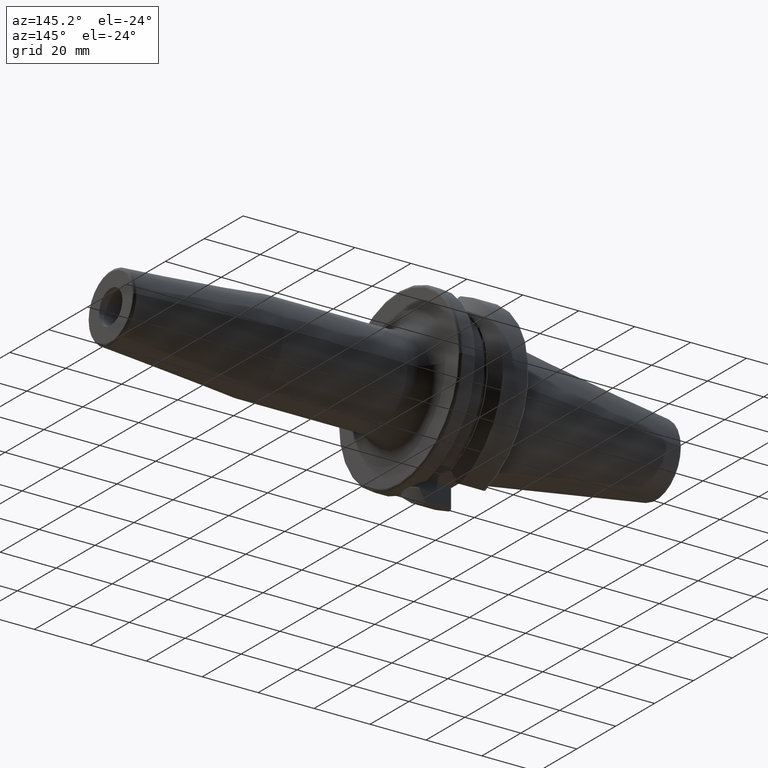
[diagram: clean part render]
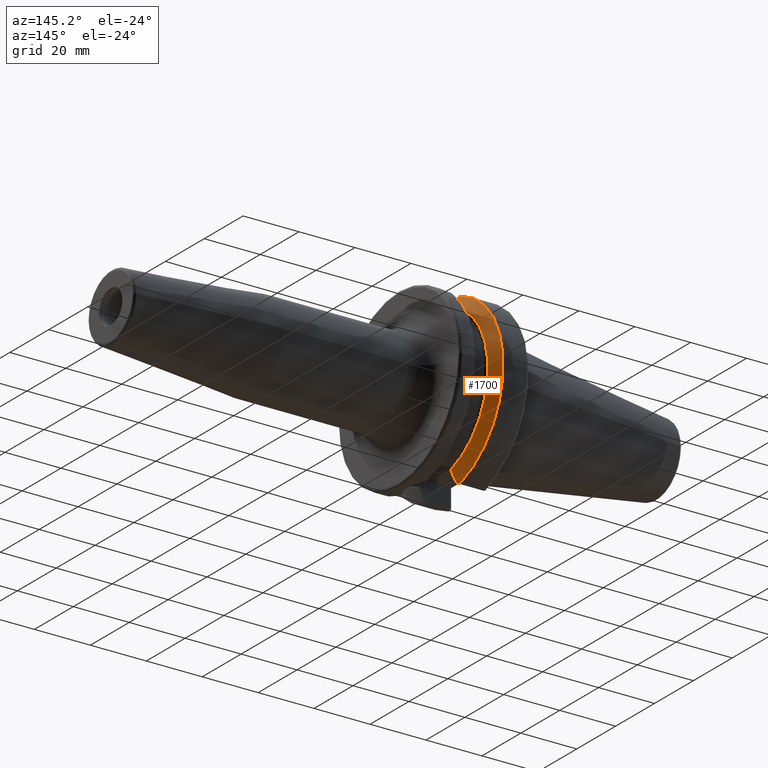
[diagram: same view with one face highlighted and labeled with its STEP entity id]
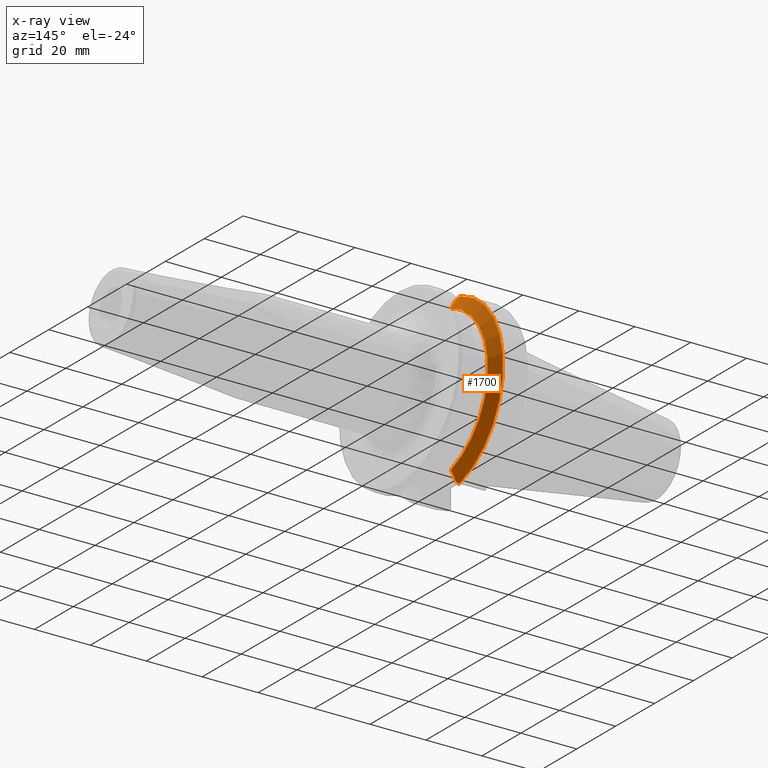
[diagram: x-ray of the same camera — body ghosted, the highlighted face saturated]
A machine part, auxiliary view. The second image highlights one B-rep face of the part: STEP entity #1700.
The next image is the same camera in x-ray: the body ghosted, the highlighted face saturated — about 0% of this face is hidden behind the body in this view.
In plain terms, the highlighted conical surface has half-angle 60 deg.
Its self-contained STEP definition (entity closure, byte-faithful):
#155=CARTESIAN_POINT('',(1.212089730171E1,8.095E0,-2.944558475789E1));
#156=CARTESIAN_POINT('',(1.234623272522E1,8.095E0,-2.904081227564E1));
#157=CARTESIAN_POINT('',(1.279052069613E1,8.095E0,-2.824155997645E1));
#158=CARTESIAN_POINT('',(1.343761208926E1,8.095E0,-2.707376738597E1));
#159=CARTESIAN_POINT('',(1.385633764716E1,8.095E0,-2.631545873157E1));
#160=CARTESIAN_POINT('',(1.40625E1,8.095E0,-2.594139336151E1));
#200=CARTESIAN_POINT('',(1.40625E1,0.E0,0.E0));
#201=DIRECTION('',(1.E0,0.E0,0.E0));
#202=DIRECTION('',(0.E0,2.978832194960E-1,-9.546023190537E-1));
#203=AXIS2_PLACEMENT_3D('',#200,#201,#202);
#237=CARTESIAN_POINT('',(1.157272253103E1,0.E0,0.E0));
#238=DIRECTION('',(1.E0,0.E0,0.E0));
#239=DIRECTION('',(0.E0,2.875039130802E-1,-9.577794631143E-1));
#240=AXIS2_PLACEMENT_3D('',#237,#238,#239);
#622=CARTESIAN_POINT('',(1.212089730171E1,8.095E0,-2.944558475789E1));
#623=CARTESIAN_POINT('',(1.203210735485E1,8.251548423090E0,-2.956204177452E1));
#624=CARTESIAN_POINT('',(1.185196062668E1,8.567728822292E0,-2.979724967558E1));
#625=CARTESIAN_POINT('',(1.166666286204E1,8.890070036919E0,-3.003704063260E1));
#626=CARTESIAN_POINT('',(1.157272253103E1,9.052779463114E0,-3.015808084481E1));
#632=CARTESIAN_POINT('',(1.157272253103E1,9.393318983190E0,3.005375541808E1));
#633=CARTESIAN_POINT('',(1.170089151867E1,9.171323784651E0,2.989055444592E1));
#634=CARTESIAN_POINT('',(1.195252831620E1,8.732937755222E0,2.956827258282E1));
#635=CARTESIAN_POINT('',(1.219479613906E1,8.305773148711E0,2.925424020953E1));
#636=CARTESIAN_POINT('',(1.231359829731E1,8.095E0,2.909928918805E1));
#673=CARTESIAN_POINT('',(1.40625E1,8.095E0,2.594139336151E1));
#674=CARTESIAN_POINT('',(1.387619304722E1,8.095E0,2.627943267022E1));
#675=CARTESIAN_POINT('',(1.349822147379E1,8.095E0,2.696405968402E1));
#676=CARTESIAN_POINT('',(1.291532431893E1,8.095E0,2.801651320770E1));
#677=CARTESIAN_POINT('',(1.251595456147E1,8.095E0,2.873548878206E1));
#678=CARTESIAN_POINT('',(1.231359829731E1,8.095E0,2.909928918805E1));
#1218=CARTESIAN_POINT('',(1.40625E1,8.095E0,-2.594139336151E1));
#1219=CARTESIAN_POINT('',(1.40625E1,8.095E0,2.594139336151E1));
#1220=VERTEX_POINT('',#1218);
#1221=VERTEX_POINT('',#1219);
#1326=VERTEX_POINT('',#678);
#1334=VERTEX_POINT('',#155);
#1344=CARTESIAN_POINT('',(1.157272253103E1,9.052779463114E0,-3.015808084481E1));
#1345=CARTESIAN_POINT('',(1.157272253103E1,9.393318983190E0,3.005375541808E1));
#1346=VERTEX_POINT('',#1344);
#1347=VERTEX_POINT('',#1345);
#1683=CARTESIAN_POINT('',(1.281761126552E1,0.E0,0.E0));
#1684=DIRECTION('',(-1.E0,0.E0,0.E0));
#1685=DIRECTION('',(0.E0,1.E0,0.E0));
#1686=AXIS2_PLACEMENT_3D('',#1683,#1684,#1685);
#1687=CONICAL_SURFACE('',#1686,2.933128946210E1,6.E1);
#1689=ORIENTED_EDGE('',*,*,#1688,.F.);
#1691=ORIENTED_EDGE('',*,*,#1690,.F.);
#1692=ORIENTED_EDGE('',*,*,#1634,.T.);
#1693=ORIENTED_EDGE('',*,*,#1657,.T.);
#1695=ORIENTED_EDGE('',*,*,#1694,.T.);
#1697=ORIENTED_EDGE('',*,*,#1696,.F.);
#1698=EDGE_LOOP('',(#1689,#1691,#1692,#1693,#1695,#1697));
#1699=FACE_OUTER_BOUND('',#1698,.F.);
#1700=ADVANCED_FACE('',(#1699),#1687,.T.);
#161=B_SPLINE_CURVE_WITH_KNOTS('',3,(#155,#156,#157,#158,#159,#160),
.UNSPECIFIED.,.F.,.F.,(4,1,1,4),(0.E0,3.333333333333E-1,6.666666666667E-1,1.E0),
.UNSPECIFIED.);
#204=CIRCLE('',#203,2.717507892421E1);
#241=CIRCLE('',#240,3.14875E1);
#627=B_SPLINE_CURVE_WITH_KNOTS('',3,(#622,#623,#624,#625,#626),.UNSPECIFIED.,
.F.,.F.,(4,1,4),(0.E0,5.E-1,1.E0),.UNSPECIFIED.);
#637=B_SPLINE_CURVE_WITH_KNOTS('',3,(#632,#633,#634,#635,#636),.UNSPECIFIED.,
.F.,.F.,(4,1,4),(0.E0,5.E-1,1.E0),.UNSPECIFIED.);
#679=B_SPLINE_CURVE_WITH_KNOTS('',3,(#673,#674,#675,#676,#677,#678),
.UNSPECIFIED.,.F.,.F.,(4,1,1,4),(0.E0,3.333333333333E-1,6.666666666667E-1,1.E0),
.UNSPECIFIED.);
#1634=EDGE_CURVE('',#1334,#1220,#161,.T.);
#1657=EDGE_CURVE('',#1220,#1221,#204,.T.);
#1688=EDGE_CURVE('',#1346,#1347,#241,.T.);
#1690=EDGE_CURVE('',#1334,#1346,#627,.T.);
#1694=EDGE_CURVE('',#1221,#1326,#679,.T.);
#1696=EDGE_CURVE('',#1347,#1326,#637,.T.);